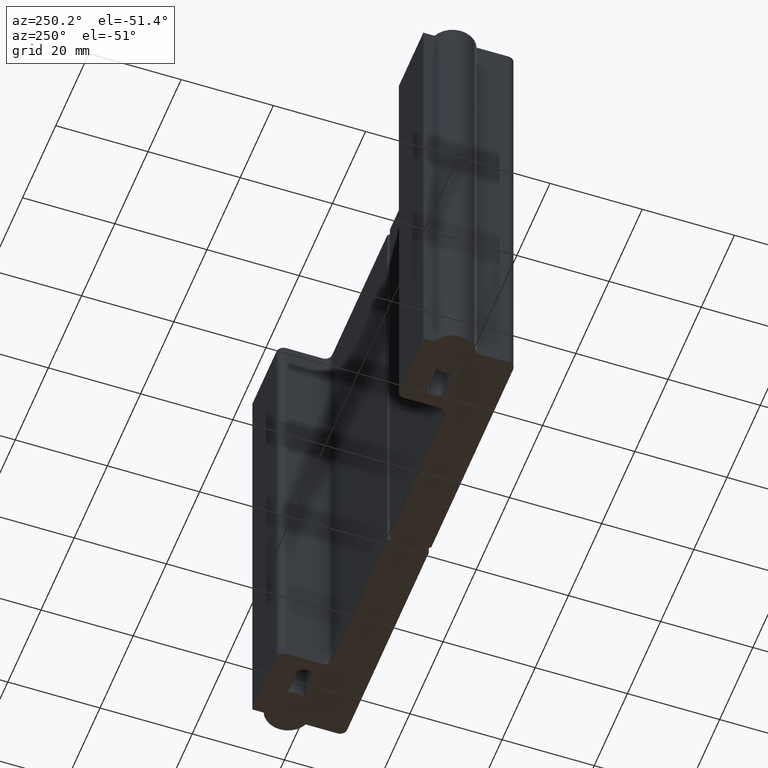
[diagram: clean part render]
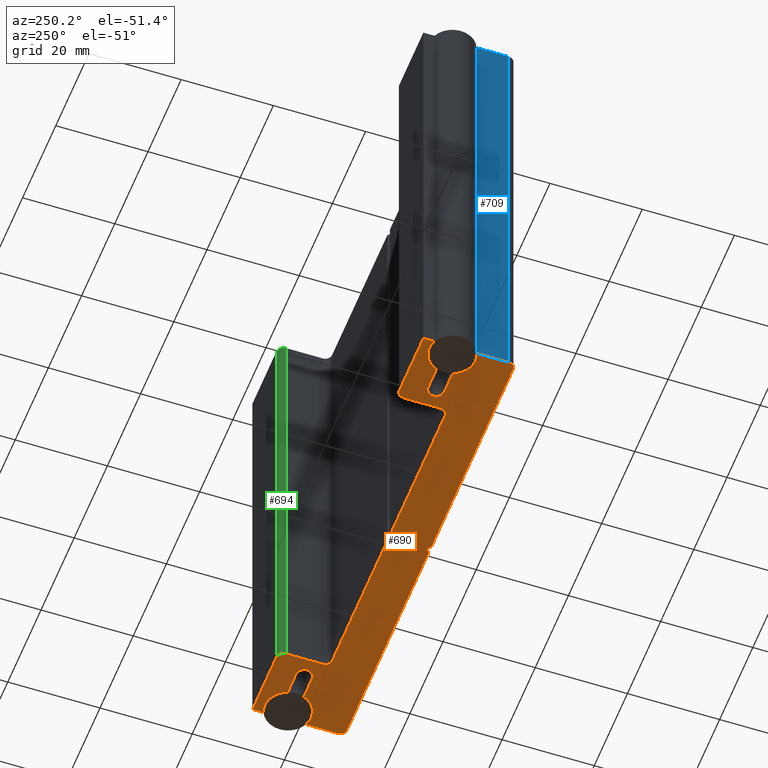
[diagram: same view with three faces highlighted in distinct colors, each labeled with its STEP entity id]
A machine part, auxiliary view with three faces highlighted in distinct colors.
Their STEP definitions:

[orange] entity #690 — the highlighted planar face has unit normal (0, 0, 1).
#37=PLANE('',#790);
#68=FACE_OUTER_BOUND('',#105,.T.);
#105=EDGE_LOOP('',(#512,#513,#514,#515,#516,#517,#518,#519,#520,#521,#522,
#523,#524,#525,#526,#527,#528,#529,#530,#531,#532,#533,#534,#535,#536,#537,
#538,#539,#540,#541,#542,#543));
#130=LINE('',#1054,#203);
#134=LINE('',#1063,#207);
#138=LINE('',#1075,#211);
#142=LINE('',#1084,#215);
#150=LINE('',#1119,#223);
#151=LINE('',#1121,#224);
#152=LINE('',#1125,#225);
#153=LINE('',#1129,#226);
#154=LINE('',#1131,#227);
#155=LINE('',#1133,#228);
#156=LINE('',#1135,#229);
#157=LINE('',#1139,#230);
#158=LINE('',#1143,#231);
#159=LINE('',#1144,#232);
#160=LINE('',#1146,#233);
#161=LINE('',#1150,#234);
#162=LINE('',#1152,#235);
#163=LINE('',#1154,#236);
#164=LINE('',#1156,#237);
#165=LINE('',#1159,#238);
#203=VECTOR('',#848,10.);
#207=VECTOR('',#854,10.);
#211=VECTOR('',#866,10.);
#215=VECTOR('',#872,10.);
#223=VECTOR('',#912,10.);
#224=VECTOR('',#913,10.);
#225=VECTOR('',#916,10.);
#226=VECTOR('',#919,10.);
#227=VECTOR('',#920,10.);
#228=VECTOR('',#921,10.);
#229=VECTOR('',#922,10.);
#230=VECTOR('',#925,10.);
#231=VECTOR('',#928,10.);
#232=VECTOR('',#929,10.);
#233=VECTOR('',#930,10.);
#234=VECTOR('',#933,10.);
#235=VECTOR('',#934,10.);
#236=VECTOR('',#935,10.);
#237=VECTOR('',#936,10.);
#238=VECTOR('',#939,10.);
#277=CIRCLE('',#771,1.75);
#279=CIRCLE('',#776,1.75);
#282=CIRCLE('',#780,5.);
#283=CIRCLE('',#782,5.);
#286=CIRCLE('',#786,5.);
#287=CIRCLE('',#788,5.);
#289=CIRCLE('',#791,1.5);
#290=CIRCLE('',#792,1.5);
#291=CIRCLE('',#793,1.5);
#292=CIRCLE('',#794,1.5);
#293=CIRCLE('',#795,1.5);
#294=CIRCLE('',#796,1.5);
#303=VERTEX_POINT('',#1052);
#304=VERTEX_POINT('',#1053);
#307=VERTEX_POINT('',#1061);
#308=VERTEX_POINT('',#1062);
#311=VERTEX_POINT('',#1073);
#312=VERTEX_POINT('',#1074);
#315=VERTEX_POINT('',#1082);
#316=VERTEX_POINT('',#1083);
#320=VERTEX_POINT('',#1096);
#321=VERTEX_POINT('',#1100);
#324=VERTEX_POINT('',#1108);
#325=VERTEX_POINT('',#1112);
#327=VERTEX_POINT('',#1118);
#328=VERTEX_POINT('',#1120);
#329=VERTEX_POINT('',#1122);
#330=VERTEX_POINT('',#1124);
#331=VERTEX_POINT('',#1126);
#332=VERTEX_POINT('',#1128);
#333=VERTEX_POINT('',#1130);
#334=VERTEX_POINT('',#1132);
#335=VERTEX_POINT('',#1134);
#336=VERTEX_POINT('',#1136);
#337=VERTEX_POINT('',#1138);
#338=VERTEX_POINT('',#1140);
#339=VERTEX_POINT('',#1142);
#340=VERTEX_POINT('',#1145);
#341=VERTEX_POINT('',#1147);
#342=VERTEX_POINT('',#1149);
#343=VERTEX_POINT('',#1151);
#344=VERTEX_POINT('',#1153);
#345=VERTEX_POINT('',#1155);
#346=VERTEX_POINT('',#1157);
#370=EDGE_CURVE('',#303,#304,#130,.T.);
#374=EDGE_CURVE('',#307,#308,#134,.T.);
#378=EDGE_CURVE('',#308,#303,#277,.T.);
#380=EDGE_CURVE('',#311,#312,#138,.T.);
#384=EDGE_CURVE('',#315,#316,#142,.T.);
#388=EDGE_CURVE('',#316,#311,#279,.T.);
#392=EDGE_CURVE('',#304,#320,#282,.T.);
#393=EDGE_CURVE('',#321,#307,#283,.T.);
#398=EDGE_CURVE('',#312,#324,#286,.T.);
#399=EDGE_CURVE('',#325,#315,#287,.T.);
#402=EDGE_CURVE('',#320,#327,#150,.T.);
#403=EDGE_CURVE('',#327,#328,#151,.T.);
#404=EDGE_CURVE('',#329,#328,#289,.T.);
#405=EDGE_CURVE('',#329,#330,#152,.T.);
#406=EDGE_CURVE('',#331,#330,#290,.T.);
#407=EDGE_CURVE('',#331,#332,#153,.T.);
#408=EDGE_CURVE('',#332,#333,#154,.T.);
#409=EDGE_CURVE('',#333,#334,#155,.T.);
#410=EDGE_CURVE('',#334,#335,#156,.T.);
#411=EDGE_CURVE('',#336,#335,#291,.T.);
#412=EDGE_CURVE('',#336,#337,#157,.T.);
#413=EDGE_CURVE('',#338,#337,#292,.T.);
#414=EDGE_CURVE('',#338,#339,#158,.T.);
#415=EDGE_CURVE('',#339,#325,#159,.T.);
#416=EDGE_CURVE('',#324,#340,#160,.T.);
#417=EDGE_CURVE('',#341,#340,#293,.T.);
#418=EDGE_CURVE('',#341,#342,#161,.T.);
#419=EDGE_CURVE('',#342,#343,#162,.T.);
#420=EDGE_CURVE('',#343,#344,#163,.T.);
#421=EDGE_CURVE('',#344,#345,#164,.T.);
#422=EDGE_CURVE('',#346,#345,#294,.T.);
#423=EDGE_CURVE('',#346,#321,#165,.T.);
#512=ORIENTED_EDGE('',*,*,#374,.T.);
#513=ORIENTED_EDGE('',*,*,#378,.T.);
#514=ORIENTED_EDGE('',*,*,#370,.T.);
#515=ORIENTED_EDGE('',*,*,#392,.T.);
#516=ORIENTED_EDGE('',*,*,#402,.T.);
#517=ORIENTED_EDGE('',*,*,#403,.T.);
#518=ORIENTED_EDGE('',*,*,#404,.F.);
#519=ORIENTED_EDGE('',*,*,#405,.T.);
#520=ORIENTED_EDGE('',*,*,#406,.F.);
#521=ORIENTED_EDGE('',*,*,#407,.T.);
#522=ORIENTED_EDGE('',*,*,#408,.T.);
#523=ORIENTED_EDGE('',*,*,#409,.T.);
#524=ORIENTED_EDGE('',*,*,#410,.T.);
#525=ORIENTED_EDGE('',*,*,#411,.F.);
#526=ORIENTED_EDGE('',*,*,#412,.T.);
#527=ORIENTED_EDGE('',*,*,#413,.F.);
#528=ORIENTED_EDGE('',*,*,#414,.T.);
#529=ORIENTED_EDGE('',*,*,#415,.T.);
#530=ORIENTED_EDGE('',*,*,#399,.T.);
#531=ORIENTED_EDGE('',*,*,#384,.T.);
#532=ORIENTED_EDGE('',*,*,#388,.T.);
#533=ORIENTED_EDGE('',*,*,#380,.T.);
#534=ORIENTED_EDGE('',*,*,#398,.T.);
#535=ORIENTED_EDGE('',*,*,#416,.T.);
#536=ORIENTED_EDGE('',*,*,#417,.F.);
#537=ORIENTED_EDGE('',*,*,#418,.T.);
#538=ORIENTED_EDGE('',*,*,#419,.T.);
#539=ORIENTED_EDGE('',*,*,#420,.T.);
#540=ORIENTED_EDGE('',*,*,#421,.T.);
#541=ORIENTED_EDGE('',*,*,#422,.F.);
#542=ORIENTED_EDGE('',*,*,#423,.T.);
#543=ORIENTED_EDGE('',*,*,#393,.T.);
#690=ADVANCED_FACE('',(#68),#37,.F.);
#771=AXIS2_PLACEMENT_3D('',#1070,#860,#861);
#776=AXIS2_PLACEMENT_3D('',#1091,#878,#879);
#780=AXIS2_PLACEMENT_3D('',#1098,#887,#888);
#782=AXIS2_PLACEMENT_3D('',#1101,#891,#892);
#786=AXIS2_PLACEMENT_3D('',#1110,#901,#902);
#788=AXIS2_PLACEMENT_3D('',#1113,#905,#906);
#790=AXIS2_PLACEMENT_3D('',#1117,#910,#911);
#791=AXIS2_PLACEMENT_3D('',#1123,#914,#915);
#792=AXIS2_PLACEMENT_3D('',#1127,#917,#918);
#793=AXIS2_PLACEMENT_3D('',#1137,#923,#924);
#794=AXIS2_PLACEMENT_3D('',#1141,#926,#927);
#795=AXIS2_PLACEMENT_3D('',#1148,#931,#932);
#796=AXIS2_PLACEMENT_3D('',#1158,#937,#938);
#848=DIRECTION('',(-1.,5.47852304786845E-16,0.));
#854=DIRECTION('',(1.,-5.47852304786845E-16,0.));
#860=DIRECTION('center_axis',(0.,0.,1.));
#861=DIRECTION('ref_axis',(0.,-1.,0.));
#866=DIRECTION('',(1.,-5.47852304786845E-16,0.));
#872=DIRECTION('',(-1.,5.47852304786845E-16,0.));
#878=DIRECTION('center_axis',(0.,0.,1.));
#879=DIRECTION('ref_axis',(0.,1.,0.));
#887=DIRECTION('center_axis',(0.,0.,1.));
#888=DIRECTION('ref_axis',(-1.,0.,0.));
#891=DIRECTION('center_axis',(0.,0.,1.));
#892=DIRECTION('ref_axis',(-1.,0.,0.));
#901=DIRECTION('center_axis',(0.,0.,1.));
#902=DIRECTION('ref_axis',(-1.,0.,0.));
#905=DIRECTION('center_axis',(0.,0.,1.));
#906=DIRECTION('ref_axis',(-1.,0.,0.));
#910=DIRECTION('center_axis',(0.,0.,1.));
#911=DIRECTION('ref_axis',(1.,0.,0.));
#912=DIRECTION('',(0.,1.,0.));
#913=DIRECTION('',(1.,0.,0.));
#914=DIRECTION('center_axis',(0.,0.,1.));
#915=DIRECTION('ref_axis',(0.707106781186549,0.707106781186546,0.));
#916=DIRECTION('',(-4.03717463500057E-16,-1.,0.));
#917=DIRECTION('center_axis',(0.,0.,-1.));
#918=DIRECTION('ref_axis',(-0.707106781186548,-0.707106781186547,0.));
#919=DIRECTION('',(1.,1.2314093406934E-16,0.));
#920=DIRECTION('',(0.707106781186546,-0.707106781186549,0.));
#921=DIRECTION('',(0.707106781186546,0.707106781186549,0.));
#922=DIRECTION('',(1.,1.2314093406934E-16,0.));
#923=DIRECTION('center_axis',(0.,0.,-1.));
#924=DIRECTION('ref_axis',(0.707106781186548,-0.707106781186547,0.));
#925=DIRECTION('',(0.,1.,0.));
#926=DIRECTION('center_axis',(0.,0.,1.));
#927=DIRECTION('ref_axis',(-0.707106781186549,0.707106781186546,0.));
#928=DIRECTION('',(1.,0.,0.));
#929=DIRECTION('',(0.,-1.,0.));
#930=DIRECTION('',(0.,-1.,0.));
#931=DIRECTION('center_axis',(0.,0.,1.));
#932=DIRECTION('ref_axis',(0.707106781186549,-0.707106781186546,0.));
#933=DIRECTION('',(-1.,0.,0.));
#934=DIRECTION('',(-0.707106781186548,0.707106781186547,0.));
#935=DIRECTION('',(-0.707106781186547,-0.707106781186548,0.));
#936=DIRECTION('',(-1.,0.,0.));
#937=DIRECTION('center_axis',(0.,0.,1.));
#938=DIRECTION('ref_axis',(-0.707106781186549,-0.707106781186546,0.));
#939=DIRECTION('',(0.,1.,0.));
#1052=CARTESIAN_POINT('',(-39.75,4.75,0.));
#1053=CARTESIAN_POINT('',(-44.8162515012012,4.75,0.));
#1054=CARTESIAN_POINT('',(-22.4081257506006,4.74999999999999,0.));
#1061=CARTESIAN_POINT('',(-44.8162515012012,1.25,0.));
#1062=CARTESIAN_POINT('',(-39.75,1.25,0.));
#1063=CARTESIAN_POINT('',(-19.875,1.24999999999999,0.));
#1070=CARTESIAN_POINT('Origin',(-39.75,3.,0.));
#1073=CARTESIAN_POINT('',(39.75,1.25,0.));
#1074=CARTESIAN_POINT('',(44.8162515012012,1.25,0.));
#1075=CARTESIAN_POINT('',(22.4081257506006,1.25000000000001,0.));
#1082=CARTESIAN_POINT('',(44.8162515012012,4.75,0.));
#1083=CARTESIAN_POINT('',(39.75,4.75,0.));
#1084=CARTESIAN_POINT('',(19.875,4.75000000000001,0.));
#1091=CARTESIAN_POINT('Origin',(39.75,3.,0.));
#1096=CARTESIAN_POINT('',(-51.5,7.58257569495584,0.));
#1098=CARTESIAN_POINT('Origin',(-49.5,3.,0.));
#1100=CARTESIAN_POINT('',(-51.5,-1.58257569495584,0.));
#1101=CARTESIAN_POINT('Origin',(-49.5,3.,0.));
#1108=CARTESIAN_POINT('',(51.5,-1.58257569495584,0.));
#1110=CARTESIAN_POINT('Origin',(49.5,3.,0.));
#1112=CARTESIAN_POINT('',(51.5,7.58257569495584,0.));
#1113=CARTESIAN_POINT('Origin',(49.5,3.,0.));
#1117=CARTESIAN_POINT('Origin',(0.,0.,0.));
#1118=CARTESIAN_POINT('',(-51.5,10.,0.));
#1119=CARTESIAN_POINT('',(-51.5,-10.,0.));
#1120=CARTESIAN_POINT('',(-37.,10.,0.));
#1121=CARTESIAN_POINT('',(-51.5,10.,0.));
#1122=CARTESIAN_POINT('',(-35.5,8.5,0.));
#1123=CARTESIAN_POINT('Origin',(-37.,8.5,0.));
#1124=CARTESIAN_POINT('',(-35.5,0.499999999999996,0.));
#1125=CARTESIAN_POINT('',(-35.5,-0.499999999999996,0.));
#1126=CARTESIAN_POINT('',(-34.,-1.,0.));
#1127=CARTESIAN_POINT('Origin',(-34.,0.499999999999995,0.));
#1128=CARTESIAN_POINT('',(-0.749999999999997,-1.,0.));
#1129=CARTESIAN_POINT('',(17.75,-0.999999999999998,0.));
#1130=CARTESIAN_POINT('',(-3.27927592723218E-16,-1.75,0.));
#1131=CARTESIAN_POINT('',(-0.4375,-1.3125,-8.88178419700125E-15));
#1132=CARTESIAN_POINT('',(0.749999999999997,-1.,0.));
#1133=CARTESIAN_POINT('',(0.812499999999999,-0.937499999999999,0.));
#1134=CARTESIAN_POINT('',(34.,-0.999999999999996,0.));
#1135=CARTESIAN_POINT('',(17.75,-0.999999999999998,0.));
#1136=CARTESIAN_POINT('',(35.5,0.500000000000004,0.));
#1137=CARTESIAN_POINT('Origin',(34.,0.500000000000004,0.));
#1138=CARTESIAN_POINT('',(35.5,8.5,0.));
#1139=CARTESIAN_POINT('',(35.5,5.,0.));
#1140=CARTESIAN_POINT('',(37.,10.,0.));
#1141=CARTESIAN_POINT('Origin',(37.,8.5,0.));
#1142=CARTESIAN_POINT('',(51.5,10.,0.));
#1143=CARTESIAN_POINT('',(-51.5,10.,0.));
#1144=CARTESIAN_POINT('',(51.5,10.,0.));
#1145=CARTESIAN_POINT('',(51.5,-8.5,0.));
#1146=CARTESIAN_POINT('',(51.5,10.,0.));
#1147=CARTESIAN_POINT('',(50.,-10.,0.));
#1148=CARTESIAN_POINT('Origin',(50.,-8.5,0.));
#1149=CARTESIAN_POINT('',(0.75,-10.,0.));
#1150=CARTESIAN_POINT('',(51.5,-10.,0.));
#1151=CARTESIAN_POINT('',(0.,-9.25,0.));
#1152=CARTESIAN_POINT('',(-2.3125,-6.9375,0.));
#1153=CARTESIAN_POINT('',(-0.749999999999997,-10.,0.));
#1154=CARTESIAN_POINT('',(1.9375,-7.3125,0.));
#1155=CARTESIAN_POINT('',(-50.,-10.,0.));
#1156=CARTESIAN_POINT('',(51.5,-10.,0.));
#1157=CARTESIAN_POINT('',(-51.5,-8.5,0.));
#1158=CARTESIAN_POINT('Origin',(-50.,-8.5,0.));
#1159=CARTESIAN_POINT('',(-51.5,-10.,0.));

[blue] entity #709 — the highlighted planar face has unit normal (-1, 0, 0).
#50=PLANE('',#821);
#87=FACE_OUTER_BOUND('',#124,.T.);
#124=EDGE_LOOP('',(#644,#645,#646,#647));
#147=LINE('',#1103,#220);
#165=LINE('',#1159,#238);
#170=LINE('',#1172,#243);
#190=LINE('',#1218,#263);
#220=VECTOR('',#893,10.);
#238=VECTOR('',#939,10.);
#243=VECTOR('',#952,10.);
#263=VECTOR('',#992,10.);
#321=VERTEX_POINT('',#1100);
#322=VERTEX_POINT('',#1102);
#346=VERTEX_POINT('',#1157);
#350=VERTEX_POINT('',#1171);
#394=EDGE_CURVE('',#322,#321,#147,.T.);
#423=EDGE_CURVE('',#346,#321,#165,.T.);
#429=EDGE_CURVE('',#322,#350,#170,.T.);
#454=EDGE_CURVE('',#350,#346,#190,.T.);
#644=ORIENTED_EDGE('',*,*,#454,.F.);
#645=ORIENTED_EDGE('',*,*,#429,.F.);
#646=ORIENTED_EDGE('',*,*,#394,.T.);
#647=ORIENTED_EDGE('',*,*,#423,.F.);
#709=ADVANCED_FACE('',(#87),#50,.T.);
#821=AXIS2_PLACEMENT_3D('',#1238,#1022,#1023);
#893=DIRECTION('',(0.,0.,-1.));
#939=DIRECTION('',(0.,1.,0.));
#952=DIRECTION('',(0.,-1.,0.));
#992=DIRECTION('',(0.,0.,-1.));
#1022=DIRECTION('center_axis',(-1.,0.,0.));
#1023=DIRECTION('ref_axis',(0.,-1.,0.));
#1100=CARTESIAN_POINT('',(-51.5,-1.58257569495584,0.));
#1102=CARTESIAN_POINT('',(-51.5,-1.58257569495584,100.));
#1103=CARTESIAN_POINT('',(-51.5,-1.58257569495584,100.));
#1157=CARTESIAN_POINT('',(-51.5,-8.5,0.));
#1159=CARTESIAN_POINT('',(-51.5,-10.,0.));
#1171=CARTESIAN_POINT('',(-51.5,-8.5,100.));
#1172=CARTESIAN_POINT('',(-51.5,-10.,100.));
#1218=CARTESIAN_POINT('',(-51.5,-8.5,0.));
#1238=CARTESIAN_POINT('Origin',(-51.5,10.,0.));

[green] entity #694 — the highlighted cylindrical surface (edge-blend (fillet) strip) has radius 1.5 mm, axis along (0, 0, 1).
#72=FACE_OUTER_BOUND('',#109,.T.);
#109=EDGE_LOOP('',(#584,#585,#586,#587));
#185=LINE('',#1209,#258);
#186=LINE('',#1210,#259);
#258=VECTOR('',#979,10.);
#259=VECTOR('',#980,10.);
#292=CIRCLE('',#794,1.5);
#298=CIRCLE('',#803,1.5);
#337=VERTEX_POINT('',#1138);
#338=VERTEX_POINT('',#1140);
#358=VERTEX_POINT('',#1188);
#359=VERTEX_POINT('',#1190);
#413=EDGE_CURVE('',#338,#337,#292,.T.);
#439=EDGE_CURVE('',#359,#358,#298,.T.);
#449=EDGE_CURVE('',#358,#338,#185,.T.);
#450=EDGE_CURVE('',#337,#359,#186,.T.);
#584=ORIENTED_EDGE('',*,*,#439,.T.);
#585=ORIENTED_EDGE('',*,*,#449,.T.);
#586=ORIENTED_EDGE('',*,*,#413,.T.);
#587=ORIENTED_EDGE('',*,*,#450,.T.);
#672=CYLINDRICAL_SURFACE('',#806,1.5);
#694=ADVANCED_FACE('',(#72),#672,.T.);
#794=AXIS2_PLACEMENT_3D('',#1141,#926,#927);
#803=AXIS2_PLACEMENT_3D('',#1191,#964,#965);
#806=AXIS2_PLACEMENT_3D('',#1208,#977,#978);
#926=DIRECTION('center_axis',(0.,0.,1.));
#927=DIRECTION('ref_axis',(-0.707106781186549,0.707106781186546,0.));
#964=DIRECTION('center_axis',(0.,0.,-1.));
#965=DIRECTION('ref_axis',(-0.707106781186549,0.707106781186546,0.));
#977=DIRECTION('center_axis',(0.,0.,1.));
#978=DIRECTION('ref_axis',(-0.707106781186549,0.707106781186546,0.));
#979=DIRECTION('',(0.,0.,-1.));
#980=DIRECTION('',(0.,0.,1.));
#1138=CARTESIAN_POINT('',(35.5,8.5,0.));
#1140=CARTESIAN_POINT('',(37.,10.,0.));
#1141=CARTESIAN_POINT('Origin',(37.,8.5,0.));
#1188=CARTESIAN_POINT('',(37.,10.,100.));
#1190=CARTESIAN_POINT('',(35.5,8.5,100.));
#1191=CARTESIAN_POINT('Origin',(37.,8.5,100.));
#1208=CARTESIAN_POINT('Origin',(37.,8.5,50.));
#1209=CARTESIAN_POINT('',(37.,10.,50.));
#1210=CARTESIAN_POINT('',(35.5,8.5,50.));